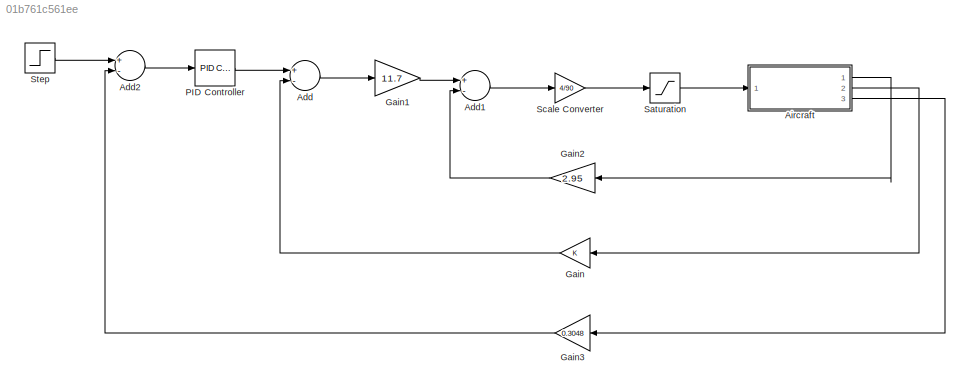
MODEL slx_01b761c561ee
KIND model
CONFIG AbsTol = auto
CONFIG FixedStep = auto
CONFIG MaxStep = auto
CONFIG MinStep = auto
CONFIG RelTol = 1e-3
CONFIG SampleTimeConstraint = Unconstrained
CONFIG Solver = ode45
CONFIG SolverMode = Auto
CONFIG SolverName = ode45
CONFIG StartTime = 0.0
CONFIG StopTime = inf
BLOCK [Sum] Add
  InputSameDT = off
  Inputs = +-
  OutDataTypeStr = Inherit: Inherit via internal rule
  Ports = [2, 1]
  SaturateOnIntegerOverflow = off
BLOCK [Sum] Add1
  InputSameDT = off
  Inputs = +-
  OutDataTypeStr = Inherit: Inherit via internal rule
  Ports = [2, 1]
  SaturateOnIntegerOverflow = off
BLOCK [Sum] Add2
  InputSameDT = off
  Inputs = +-
  OutDataTypeStr = Inherit: Inherit via internal rule
  Ports = [2, 1]
  SaturateOnIntegerOverflow = off
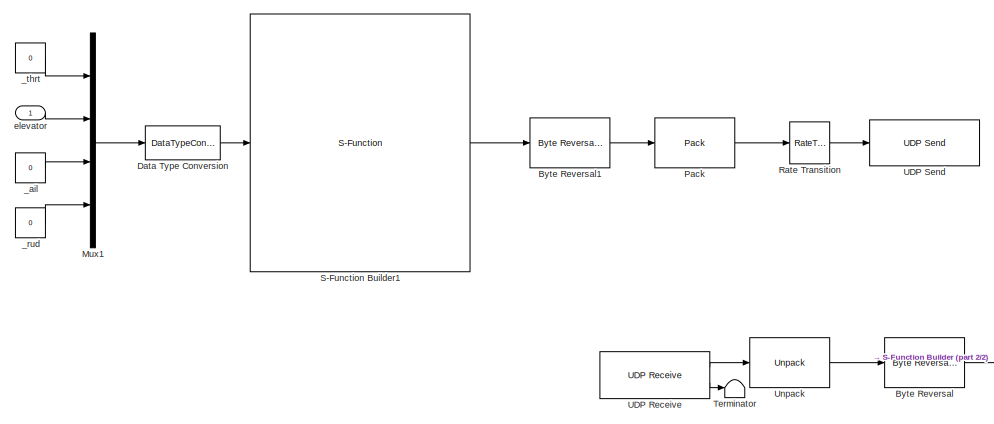
[diagram: Aircraft - part 1/2, middle left region]
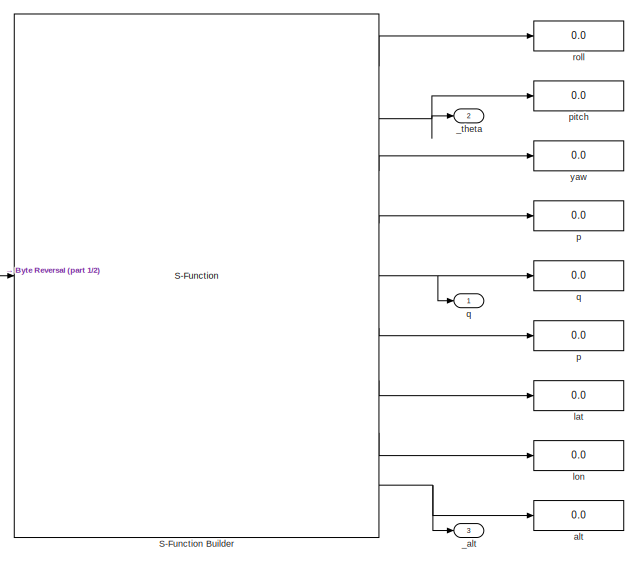
[diagram: Aircraft - part 2/2, right side, full height]
BLOCK [SubSystem] Aircraft
  Ports = [1, 3]
  RequestExecContextInheritance = off
  Variant = off
BLOCK [Reference] Aircraft/Byte Reversal  REF=xpcutilitieslib/Byte Reversal 
  Ports = [1, 1]
  SourceBlock = xpcutilitieslib/Byte Reversal
  SourceType = xpcreverseendian
BLOCK [Reference] Aircraft/Byte Reversal1  REF=xpcutilitieslib/Byte Reversal 
  Ports = [1, 1]
  SourceBlock = xpcutilitieslib/Byte Reversal
  SourceType = xpcreverseendian
BLOCK [DataTypeConversion] Aircraft/Data Type Conversion
  OutDataTypeStr = single
  RndMeth = Floor
  SaturateOnIntegerOverflow = off
BLOCK [Mux] Aircraft/Mux1
  DisplayOption = bar
  Ports = [4, 1]
BLOCK [Reference] Aircraft/Pack  REF=xpcobsoletelib/Utilities/Pack 
  Ports = [1, 1]
  SourceBlock = xpcobsoletelib/Utilities/Pack
  SourceType = xpcany2byte
BLOCK [RateTransition] Aircraft/Rate Transition
  OutPortSampleTime = 0.05
BLOCK [S-Function] Aircraft/S-Function Builder
  CopyFcn = set_param(gcbh,'LinkStatus','none')
  EnableBusSupport = off
  FunctionName = dados_xplane
  InitFcn = try, set_param(gcb,'FunctionName','dados_xplane'), end
  OpenFcn = sfunctionwizard(gcbh)
  Ports = [1, 9]
  PreSaveFcn = try, set_param(gcb,'FunctionName','dados_xplane'), end
  SFunctionDeploymentMode = off
  SFunctionModules = dados_xplane_wrapper
BLOCK [S-Function] Aircraft/S-Function Builder1
  CopyFcn = set_param(gcbh,'LinkStatus','none')
  EnableBusSupport = off
  FunctionName = dados_matlab
  InitFcn = try, set_param(gcb,'FunctionName','dados_matlab'), end
  OpenFcn = sfunctionwizard(gcbh)
  Ports = [1, 1]
  PreSaveFcn = try, set_param(gcb,'FunctionName','dados_matlab'), end
  SFunctionDeploymentMode = off
  SFunctionModules = dados_matlab_wrapper
BLOCK [Terminator] Aircraft/Terminator
BLOCK [Reference] Aircraft/UDP Receive  REF=instrumentlib/UDP Receive
  Ports = [0, 2]
  SourceBlock = instrumentlib/UDP Receive
  SourceType = UDP Receive
BLOCK [Reference] Aircraft/UDP Send  REF=instrumentlib/UDP Send
  Ports = [1]
  SourceBlock = instrumentlib/UDP Send
  SourceType = UDP Send
BLOCK [Reference] Aircraft/Unpack  REF=xpcobsoletelib/Utilities/Unpack 
  Ports = [1, 1]
  SourceBlock = xpcobsoletelib/Utilities/Unpack
  SourceType = xpcbyte2any
BLOCK [Constant] Aircraft/_ail
  Value = 0
BLOCK [Outport] Aircraft/_alt
  IconDisplay = Port number
  Port = 3
BLOCK [Constant] Aircraft/_rud
  Value = 0
BLOCK [Outport] Aircraft/_theta 
  IconDisplay = Port number
  Port = 2
BLOCK [Constant] Aircraft/_thrt
  Value = 0
BLOCK [Display] Aircraft/alt
  Decimation = 1
  Format = bank
  Ports = [1]
BLOCK [Inport] Aircraft/elevator
  IconDisplay = Port number
BLOCK [Display] Aircraft/lat 
  Decimation = 1
  Format = bank
  Ports = [1]
BLOCK [Display] Aircraft/lon
  Decimation = 1
  Format = bank
  Ports = [1]
BLOCK [Display] Aircraft/p
  Decimation = 1
  Format = bank
  Ports = [1]
BLOCK [Display] Aircraft/p 
  Decimation = 1
  Format = bank
  Ports = [1]
BLOCK [Display] Aircraft/pitch
  Decimation = 1
  Format = bank
  Ports = [1]
BLOCK [Display] Aircraft/q
  Decimation = 1
  Format = bank
  Ports = [1]
BLOCK [Outport] Aircraft/q 
  IconDisplay = Port number
BLOCK [Display] Aircraft/roll
  Decimation = 1
  Format = bank
  Ports = [1]
BLOCK [Display] Aircraft/yaw 
  Decimation = 1
  Format = bank
  Ports = [1]
BLOCK [Gain] Gain
  OutDataTypeStr = Inherit: Inherit via internal rule
  ParamDataTypeStr = Inherit: Inherit via internal rule
  SaturateOnIntegerOverflow = off
BLOCK [Gain] Gain1
  Gain = 11.7
  OutDataTypeStr = Inherit: Inherit via internal rule
  ParamDataTypeStr = Inherit: Inherit via internal rule
  SaturateOnIntegerOverflow = off
BLOCK [Gain] Gain2
  Gain = 2.95
  OutDataTypeStr = Inherit: Inherit via internal rule
  ParamDataTypeStr = Inherit: Inherit via internal rule
  SaturateOnIntegerOverflow = off
BLOCK [Gain] Gain3
  Gain = 0.3048
  OutDataTypeStr = Inherit: Inherit via internal rule
  ParamDataTypeStr = Inherit: Inherit via internal rule
  SaturateOnIntegerOverflow = off
BLOCK [Reference] PID Controller  REF=simulink/Continuous/PID Controller
  Ports = [1, 1]
  SourceBlock = simulink/Continuous/PID Controller
  SourceType = PID 1dof
BLOCK [Saturate] Saturation
  InputPortMap = u0
  LowerLimit = -1.0
  Ports = [1, 1]
  UpperLimit = 1.0
BLOCK [Gain] Scale Converter
  Gain = 4/90
  OutDataTypeStr = Inherit: Inherit via internal rule
  ParamDataTypeStr = Inherit: Inherit via internal rule
  SaturateOnIntegerOverflow = off
BLOCK [Step] Step
  After = 8000*0.3048
  SampleTime = 0
LINE Add1:1 -> Scale Converter:1
LINE Add2:1 -> PID Controller:1
LINE Add:1 -> Gain1:1
LINE Aircraft/Byte Reversal1:1 -> Aircraft/Pack:1
LINE Aircraft/Byte Reversal:1 -> Aircraft/S-Function Builder:1
LINE Aircraft/Data Type Conversion:1 -> Aircraft/S-Function Builder1:1
LINE Aircraft/Mux1:1 -> Aircraft/Data Type Conversion:1
LINE Aircraft/Pack:1 -> Aircraft/Rate Transition:1
LINE Aircraft/Rate Transition:1 -> Aircraft/UDP Send:1
LINE Aircraft/S-Function Builder1:1 -> Aircraft/Byte Reversal1:1
LINE Aircraft/S-Function Builder:1 -> Aircraft/roll:1
NET Aircraft/S-Function Builder:2 -> Aircraft/_theta :1, Aircraft/pitch:1
LINE Aircraft/S-Function Builder:3 -> Aircraft/yaw :1
LINE Aircraft/S-Function Builder:4 -> Aircraft/p :1
NET Aircraft/S-Function Builder:5 -> Aircraft/q :1, Aircraft/q:1
LINE Aircraft/S-Function Builder:6 -> Aircraft/p:1
LINE Aircraft/S-Function Builder:7 -> Aircraft/lat :1
LINE Aircraft/S-Function Builder:8 -> Aircraft/lon:1
NET Aircraft/S-Function Builder:9 -> Aircraft/_alt:1, Aircraft/alt:1
LINE Aircraft/UDP Receive:1 -> Aircraft/Unpack:1
LINE Aircraft/UDP Receive:2 -> Aircraft/Terminator:1
LINE Aircraft/Unpack:1 -> Aircraft/Byte Reversal:1
LINE Aircraft/_ail:1 -> Aircraft/Mux1:3
LINE Aircraft/_rud:1 -> Aircraft/Mux1:4
LINE Aircraft/_thrt:1 -> Aircraft/Mux1:1
LINE Aircraft/elevator:1 -> Aircraft/Mux1:2
LINE Aircraft:1 -> Gain2:1
LINE Aircraft:2 -> Gain:1
LINE Aircraft:3 -> Gain3:1
LINE Gain1:1 -> Add1:1
LINE Gain2:1 -> Add1:2
LINE Gain3:1 -> Add2:2
LINE Gain:1 -> Add:2
LINE PID Controller:1 -> Add:1
LINE Saturation:1 -> Aircraft:1
LINE Scale Converter:1 -> Saturation:1
LINE Step:1 -> Add2:1
note: NET lines group one-source signal fan-out (src -> all destinations, sorted); 1:1 wires keep LINE
